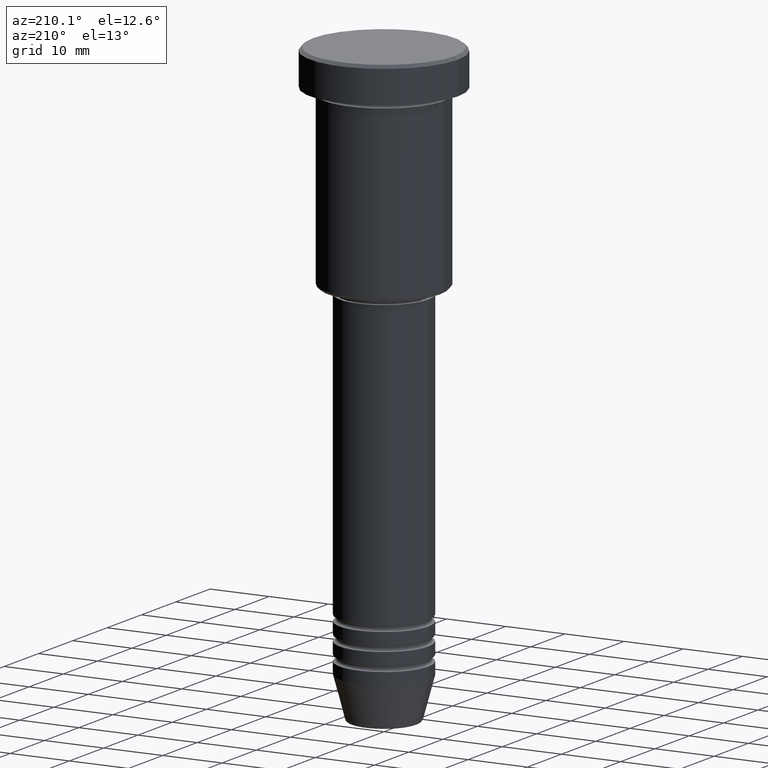
[diagram: clean part render]
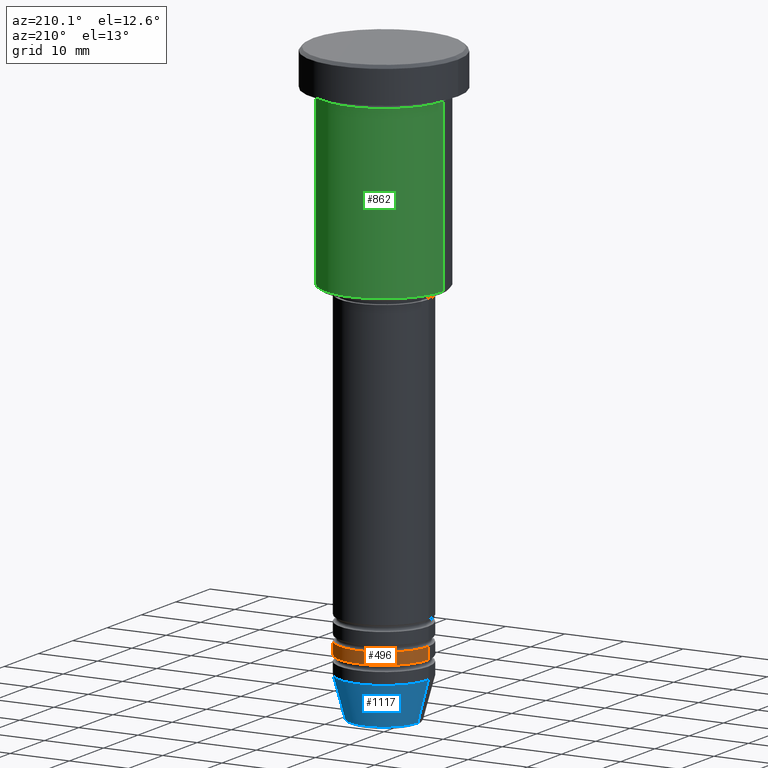
[diagram: same view with three faces highlighted in distinct colors, each labeled with its STEP entity id]
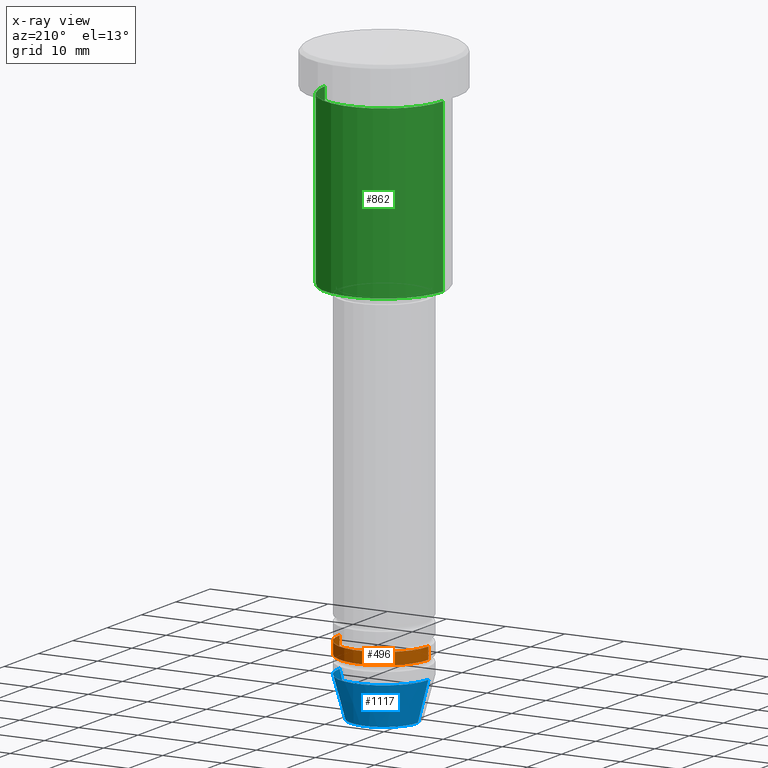
[diagram: x-ray of the same camera — body ghosted, the three highlighted faces saturated]
A machine part, auxiliary view with three faces highlighted in distinct colors.
The next image is the same camera in x-ray (body ghosted, the three faces saturated) — at least one of them is partly hidden behind the body in this view.
Their STEP definitions:

[orange] entity #496 — the highlighted cylindrical surface (partial cylindrical patch) has radius 7.5 mm, axis along (-0, -0, 1).
#3 = VERTEX_POINT ( 'NONE', #1090 ) ;
#32 = CIRCLE ( 'NONE', #539, 7.500000000000000000 ) ;
#48 = CARTESIAN_POINT ( 'NONE',  ( 0.000000000000000000, 0.000000000000000000, -88.99999999999998579 ) ) ;
#60 = EDGE_CURVE ( 'NONE', #1065, #3, #669, .T. ) ;
#86 = FACE_OUTER_BOUND ( 'NONE', #630, .T. ) ;
#96 = VECTOR ( 'NONE', #464, 1000.000000000000000 ) ;
#123 = VECTOR ( 'NONE', #206, 1000.000000000000000 ) ;
#160 = EDGE_CURVE ( 'NONE', #878, #786, #32, .T. ) ;
#184 = DIRECTION ( 'NONE',  ( -0.000000000000000000, -0.000000000000000000, 1.000000000000000000 ) ) ;
#206 = DIRECTION ( 'NONE',  ( -0.000000000000000000, -0.000000000000000000, 1.000000000000000000 ) ) ;
#218 = EDGE_CURVE ( 'NONE', #3, #786, #937, .T. ) ;
#270 = DIRECTION ( 'NONE',  ( 1.000000000000000000, 0.000000000000000000, 0.000000000000000000 ) ) ;
#353 = DIRECTION ( 'NONE',  ( -0.000000000000000000, -0.000000000000000000, 1.000000000000000000 ) ) ;
#406 = AXIS2_PLACEMENT_3D ( 'NONE', #626, #184, #999 ) ;
#415 = ORIENTED_EDGE ( 'NONE', *, *, #842, .F. ) ;
#416 = ORIENTED_EDGE ( 'NONE', *, *, #218, .T. ) ;
#438 = AXIS2_PLACEMENT_3D ( 'NONE', #905, #523, #606 ) ;
#464 = DIRECTION ( 'NONE',  ( -0.000000000000000000, -0.000000000000000000, 1.000000000000000000 ) ) ;
#474 = CARTESIAN_POINT ( 'NONE',  ( 7.500000000000000000, 0.000000000000000000, 0.000000000000000000 ) ) ;
#496 = ADVANCED_FACE ( 'NONE', ( #86 ), #614, .T. ) ;
#523 = DIRECTION ( 'NONE',  ( -0.000000000000000000, -0.000000000000000000, 1.000000000000000000 ) ) ;
#539 = AXIS2_PLACEMENT_3D ( 'NONE', #48, #353, #270 ) ;
#606 = DIRECTION ( 'NONE',  ( 1.000000000000000000, 0.000000000000000000, 0.000000000000000000 ) ) ;
#611 = CARTESIAN_POINT ( 'NONE',  ( 7.500000000000000000, 0.000000000000000000, -88.99999999999998579 ) ) ;
#614 = CYLINDRICAL_SURFACE ( 'NONE', #406, 7.500000000000000000 ) ;
#626 = CARTESIAN_POINT ( 'NONE',  ( 0.000000000000000000, 0.000000000000000000, 0.000000000000000000 ) ) ;
#630 = EDGE_LOOP ( 'NONE', ( #1163, #416, #1171, #415 ) ) ;
#645 = LINE ( 'NONE', #474, #123 ) ;
#664 = CARTESIAN_POINT ( 'NONE',  ( -7.500000000000000000, 9.184850993605147944E-16, 0.000000000000000000 ) ) ;
#669 = CIRCLE ( 'NONE', #438, 7.500000000000000000 ) ;
#786 = VERTEX_POINT ( 'NONE', #845 ) ;
#842 = EDGE_CURVE ( 'NONE', #1065, #878, #645, .T. ) ;
#845 = CARTESIAN_POINT ( 'NONE',  ( -7.500000000000000000, 9.184850993605147944E-16, -88.99999999999998579 ) ) ;
#878 = VERTEX_POINT ( 'NONE', #611 ) ;
#905 = CARTESIAN_POINT ( 'NONE',  ( 0.000000000000000000, 0.000000000000000000, -90.99999999999998579 ) ) ;
#937 = LINE ( 'NONE', #664, #96 ) ;
#999 = DIRECTION ( 'NONE',  ( 1.000000000000000000, 0.000000000000000000, 0.000000000000000000 ) ) ;
#1065 = VERTEX_POINT ( 'NONE', #1100 ) ;
#1090 = CARTESIAN_POINT ( 'NONE',  ( -7.500000000000000000, 9.184850993605147944E-16, -90.99999999999998579 ) ) ;
#1100 = CARTESIAN_POINT ( 'NONE',  ( 7.500000000000000000, 0.000000000000000000, -90.99999999999998579 ) ) ;
#1163 = ORIENTED_EDGE ( 'NONE', *, *, #60, .T. ) ;
#1171 = ORIENTED_EDGE ( 'NONE', *, *, #160, .F. ) ;

[blue] entity #1117 — the highlighted conical surface has half-angle 15 deg.
#8 = AXIS2_PLACEMENT_3D ( 'NONE', #380, #1033, #135 ) ;
#74 = VERTEX_POINT ( 'NONE', #280 ) ;
#126 = DIRECTION ( 'NONE',  ( 1.000000000000000000, 0.000000000000000000, 0.000000000000000000 ) ) ;
#135 = DIRECTION ( 'NONE',  ( 1.000000000000000000, 0.000000000000000000, 0.000000000000000000 ) ) ;
#199 = EDGE_CURVE ( 'NONE', #610, #74, #1009, .T. ) ;
#210 = CARTESIAN_POINT ( 'NONE',  ( 5.723655072137191269, 0.000000000000000000, -100.6294095225512706 ) ) ;
#256 = ORIENTED_EDGE ( 'NONE', *, *, #561, .F. ) ;
#280 = CARTESIAN_POINT ( 'NONE',  ( -5.723655072137190380, 8.097153428560735915E-16, -100.6294095225512706 ) ) ;
#313 = ORIENTED_EDGE ( 'NONE', *, *, #780, .T. ) ;
#346 = ORIENTED_EDGE ( 'NONE', *, *, #199, .T. ) ;
#350 = CONICAL_SURFACE ( 'NONE', #807, 7.500000000000000000, 0.2617993877991500740 ) ;
#354 = VERTEX_POINT ( 'NONE', #846 ) ;
#380 = CARTESIAN_POINT ( 'NONE',  ( 0.000000000000000000, 0.000000000000000000, -100.6294095225512706 ) ) ;
#480 = CARTESIAN_POINT ( 'NONE',  ( -7.500000000000000000, 9.184850993605147944E-16, -94.00000000000000000 ) ) ;
#517 = VECTOR ( 'NONE', #1019, 1000.000000000000000 ) ;
#561 = EDGE_CURVE ( 'NONE', #610, #354, #1024, .T. ) ;
#564 = DIRECTION ( 'NONE',  ( -0.000000000000000000, -0.000000000000000000, 1.000000000000000000 ) ) ;
#567 = AXIS2_PLACEMENT_3D ( 'NONE', #752, #564, #126 ) ;
#610 = VERTEX_POINT ( 'NONE', #210 ) ;
#631 = CIRCLE ( 'NONE', #567, 7.500000000000000000 ) ;
#637 = CARTESIAN_POINT ( 'NONE',  ( 0.000000000000000000, 0.000000000000000000, -94.00000000000000000 ) ) ;
#650 = DIRECTION ( 'NONE',  ( -0.2588190451025213501, 3.169619151431772337E-17, 0.9659258262890680902 ) ) ;
#710 = DIRECTION ( 'NONE',  ( 1.000000000000000000, 0.000000000000000000, 0.000000000000000000 ) ) ;
#747 = VECTOR ( 'NONE', #650, 1000.000000000000000 ) ;
#752 = CARTESIAN_POINT ( 'NONE',  ( 0.000000000000000000, 0.000000000000000000, -94.00000000000000000 ) ) ;
#759 = LINE ( 'NONE', #480, #747 ) ;
#780 = EDGE_CURVE ( 'NONE', #74, #791, #759, .T. ) ;
#791 = VERTEX_POINT ( 'NONE', #1122 ) ;
#800 = ORIENTED_EDGE ( 'NONE', *, *, #835, .F. ) ;
#807 = AXIS2_PLACEMENT_3D ( 'NONE', #637, #1012, #710 ) ;
#835 = EDGE_CURVE ( 'NONE', #354, #791, #631, .T. ) ;
#846 = CARTESIAN_POINT ( 'NONE',  ( 7.500000000000000000, 0.000000000000000000, -94.00000000000000000 ) ) ;
#885 = EDGE_LOOP ( 'NONE', ( #346, #313, #800, #256 ) ) ;
#1009 = CIRCLE ( 'NONE', #8, 5.723655072137191269 ) ;
#1012 = DIRECTION ( 'NONE',  ( -0.000000000000000000, -0.000000000000000000, 1.000000000000000000 ) ) ;
#1019 = DIRECTION ( 'NONE',  ( 0.2588190451025213501, 0.000000000000000000, 0.9659258262890680902 ) ) ;
#1024 = LINE ( 'NONE', #1029, #517 ) ;
#1029 = CARTESIAN_POINT ( 'NONE',  ( 7.500000000000000000, 0.000000000000000000, -94.00000000000000000 ) ) ;
#1033 = DIRECTION ( 'NONE',  ( -0.000000000000000000, -0.000000000000000000, 1.000000000000000000 ) ) ;
#1104 = FACE_OUTER_BOUND ( 'NONE', #885, .T. ) ;
#1117 = ADVANCED_FACE ( 'NONE', ( #1104 ), #350, .T. ) ;
#1122 = CARTESIAN_POINT ( 'NONE',  ( -7.500000000000000000, 9.184850993605147944E-16, -94.00000000000000000 ) ) ;

[green] entity #862 — the highlighted cylindrical surface (partial cylindrical patch) has radius 10 mm, axis along (-0, -0, 1).
#5 = LINE ( 'NONE', #518, #536 ) ;
#30 = DIRECTION ( 'NONE',  ( -0.000000000000000000, -0.000000000000000000, 1.000000000000000000 ) ) ;
#38 = EDGE_CURVE ( 'NONE', #985, #488, #5, .T. ) ;
#42 = CYLINDRICAL_SURFACE ( 'NONE', #51, 10.00000000000000000 ) ;
#51 = AXIS2_PLACEMENT_3D ( 'NONE', #482, #1118, #143 ) ;
#70 = ORIENTED_EDGE ( 'NONE', *, *, #75, .F. ) ;
#75 = EDGE_CURVE ( 'NONE', #705, #699, #362, .T. ) ;
#115 = CARTESIAN_POINT ( 'NONE',  ( 0.000000000000000000, 0.000000000000000000, -6.999999999999996447 ) ) ;
#143 = DIRECTION ( 'NONE',  ( 1.000000000000000000, 0.000000000000000000, 0.000000000000000000 ) ) ;
#229 = DIRECTION ( 'NONE',  ( 1.000000000000000000, 0.000000000000000000, 0.000000000000000000 ) ) ;
#257 = ORIENTED_EDGE ( 'NONE', *, *, #735, .F. ) ;
#283 = DIRECTION ( 'NONE',  ( -0.000000000000000000, -0.000000000000000000, 1.000000000000000000 ) ) ;
#362 = LINE ( 'NONE', #725, #772 ) ;
#387 = DIRECTION ( 'NONE',  ( -1.000000000000000000, 0.000000000000000000, 0.000000000000000000 ) ) ;
#458 = DIRECTION ( 'NONE',  ( -0.000000000000000000, -0.000000000000000000, 1.000000000000000000 ) ) ;
#469 = CARTESIAN_POINT ( 'NONE',  ( 0.000000000000000000, 0.000000000000000000, -35.50000000000000711 ) ) ;
#471 = CIRCLE ( 'NONE', #632, 10.00000000000000000 ) ;
#482 = CARTESIAN_POINT ( 'NONE',  ( 0.000000000000000000, 0.000000000000000000, 0.000000000000000000 ) ) ;
#488 = VERTEX_POINT ( 'NONE', #993 ) ;
#518 = CARTESIAN_POINT ( 'NONE',  ( -10.00000000000000000, 1.224646799147353256E-15, 0.000000000000000000 ) ) ;
#536 = VECTOR ( 'NONE', #718, 1000.000000000000000 ) ;
#632 = AXIS2_PLACEMENT_3D ( 'NONE', #469, #30, #387 ) ;
#646 = CARTESIAN_POINT ( 'NONE',  ( -10.00000000000000000, 1.224646799147353256E-15, -35.50000000000000711 ) ) ;
#676 = ORIENTED_EDGE ( 'NONE', *, *, #38, .T. ) ;
#699 = VERTEX_POINT ( 'NONE', #844 ) ;
#705 = VERTEX_POINT ( 'NONE', #1120 ) ;
#718 = DIRECTION ( 'NONE',  ( -0.000000000000000000, -0.000000000000000000, 1.000000000000000000 ) ) ;
#725 = CARTESIAN_POINT ( 'NONE',  ( 10.00000000000000000, 0.000000000000000000, 0.000000000000000000 ) ) ;
#732 = CIRCLE ( 'NONE', #766, 10.00000000000000000 ) ;
#735 = EDGE_CURVE ( 'NONE', #699, #488, #732, .T. ) ;
#766 = AXIS2_PLACEMENT_3D ( 'NONE', #115, #458, #229 ) ;
#772 = VECTOR ( 'NONE', #283, 1000.000000000000000 ) ;
#793 = ORIENTED_EDGE ( 'NONE', *, *, #830, .T. ) ;
#830 = EDGE_CURVE ( 'NONE', #705, #985, #471, .T. ) ;
#844 = CARTESIAN_POINT ( 'NONE',  ( 10.00000000000000000, 0.000000000000000000, -6.999999999999996447 ) ) ;
#862 = ADVANCED_FACE ( 'NONE', ( #955 ), #42, .T. ) ;
#940 = EDGE_LOOP ( 'NONE', ( #793, #676, #257, #70 ) ) ;
#955 = FACE_OUTER_BOUND ( 'NONE', #940, .T. ) ;
#985 = VERTEX_POINT ( 'NONE', #646 ) ;
#993 = CARTESIAN_POINT ( 'NONE',  ( -10.00000000000000000, 1.224646799147353256E-15, -6.999999999999996447 ) ) ;
#1118 = DIRECTION ( 'NONE',  ( -0.000000000000000000, -0.000000000000000000, 1.000000000000000000 ) ) ;
#1120 = CARTESIAN_POINT ( 'NONE',  ( 10.00000000000000000, 0.000000000000000000, -35.50000000000000711 ) ) ;